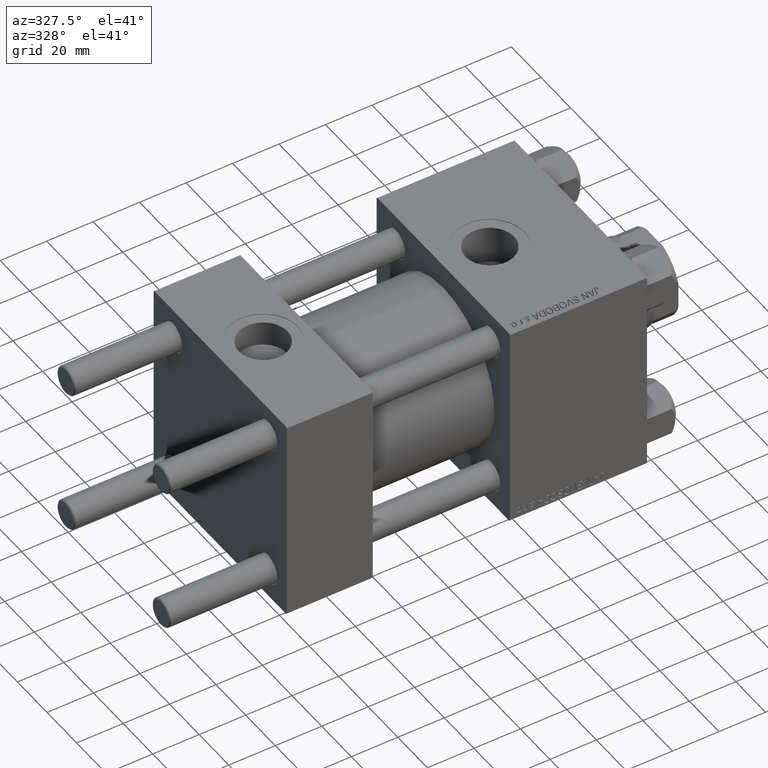
[diagram: clean part render]
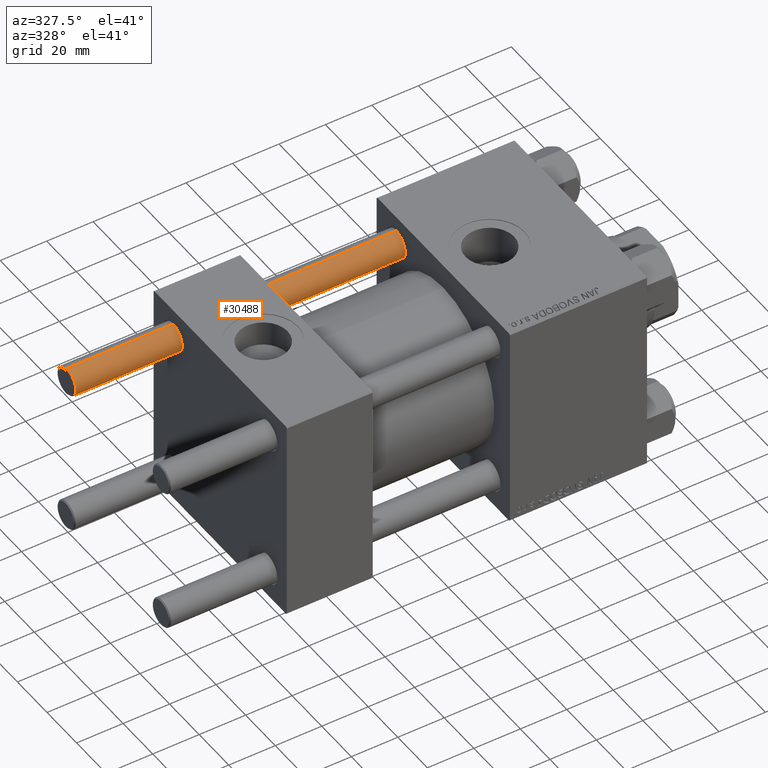
[diagram: same view with one face highlighted and labeled with its STEP entity id]
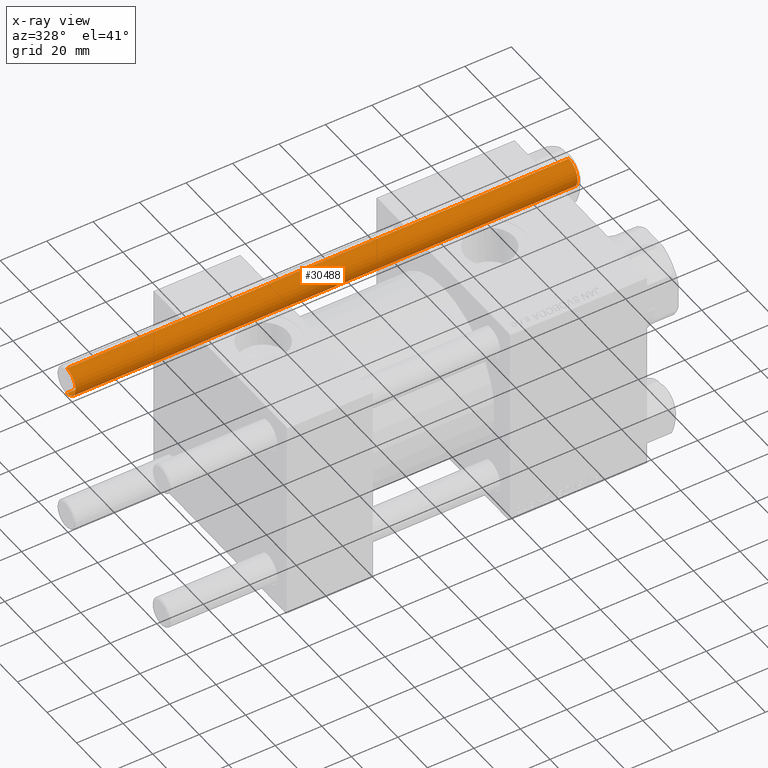
[diagram: x-ray of the same camera — body ghosted, the highlighted face saturated]
A machine part, auxiliary view. The second image highlights one B-rep face of the part: STEP entity #30488.
The next image is the same camera in x-ray: the body ghosted, the highlighted face saturated — about 0% of this face is hidden behind the body in this view.
In plain terms, the highlighted cylindrical surface (edge-blend (fillet) strip) has radius 6 mm, axis along (-1, -0, -0).
Its self-contained STEP definition (entity closure, byte-faithful):
#1919 = ORIENTED_EDGE ( 'NONE', *, *, #45602, .T. ) ;
#2464 = DIRECTION ( 'NONE',  ( -0.000000000000000000, -0.000000000000000000, 1.000000000000000000 ) ) ;
#2714 = CARTESIAN_POINT ( 'NONE',  ( -6.000000000000000888, 0.000000000000000000, 0.4999999999999449329 ) ) ;
#3381 = CIRCLE ( 'NONE', #31488, 6.000000000000000888 ) ;
#3660 = ORIENTED_EDGE ( 'NONE', *, *, #43885, .T. ) ;
#10644 = DIRECTION ( 'NONE',  ( -1.000000000000000000, 0.000000000000000000, 0.000000000000000000 ) ) ;
#12758 = DIRECTION ( 'NONE',  ( -0.000000000000000000, -0.000000000000000000, -1.000000000000000000 ) ) ;
#14034 = DIRECTION ( 'NONE',  ( 1.000000000000000000, 0.000000000000000000, 0.000000000000000000 ) ) ;
#15034 = DIRECTION ( 'NONE',  ( -0.000000000000000000, -0.000000000000000000, -1.000000000000000000 ) ) ;
#17020 = CARTESIAN_POINT ( 'NONE',  ( -6.000000000000000888, 0.000000000000000000, 217.0000000000000000 ) ) ;
#18094 = ORIENTED_EDGE ( 'NONE', *, *, #42589, .F. ) ;
#18311 = CARTESIAN_POINT ( 'NONE',  ( 6.000000000000000888, 7.347880794884120722E-16, 217.0000000000000000 ) ) ;
#18837 = EDGE_CURVE ( 'NONE', #41429, #45914, #45048, .T. ) ;
#19251 = CARTESIAN_POINT ( 'NONE',  ( -6.000000000000000888, 0.000000000000000000, 216.4999999999999716 ) ) ;
#22309 = AXIS2_PLACEMENT_3D ( 'NONE', #33528, #29749, #10644 ) ;
#24275 = CARTESIAN_POINT ( 'NONE',  ( 0.000000000000000000, 0.000000000000000000, 216.4999999999999716 ) ) ;
#29749 = DIRECTION ( 'NONE',  ( -0.000000000000000000, -0.000000000000000000, -1.000000000000000000 ) ) ;
#30488 = ADVANCED_FACE ( 'NONE', ( #41588 ), #33277, .T. ) ;
#30657 = VECTOR ( 'NONE', #12758, 1000.000000000000000 ) ;
#31488 = AXIS2_PLACEMENT_3D ( 'NONE', #36943, #2464, #14034 ) ;
#33277 = CYLINDRICAL_SURFACE ( 'NONE', #22309, 6.000000000000000888 ) ;
#33528 = CARTESIAN_POINT ( 'NONE',  ( 0.000000000000000000, 0.000000000000000000, 217.0000000000000000 ) ) ;
#33937 = VECTOR ( 'NONE', #15034, 1000.000000000000000 ) ;
#36943 = CARTESIAN_POINT ( 'NONE',  ( 0.000000000000000000, 0.000000000000000000, 0.4999999999999449329 ) ) ;
#40196 = AXIS2_PLACEMENT_3D ( 'NONE', #24275, #46935, #47917 ) ;
#40771 = CARTESIAN_POINT ( 'NONE',  ( 6.000000000000000888, 7.347880794884120722E-16, 216.4999999999999716 ) ) ;
#41429 = VERTEX_POINT ( 'NONE', #40771 ) ;
#41462 = LINE ( 'NONE', #18311, #33937 ) ;
#41588 = FACE_OUTER_BOUND ( 'NONE', #42829, .T. ) ;
#42589 = EDGE_CURVE ( 'NONE', #41429, #45285, #41462, .T. ) ;
#42829 = EDGE_LOOP ( 'NONE', ( #18094, #47895, #3660, #1919 ) ) ;
#43885 = EDGE_CURVE ( 'NONE', #45914, #45530, #48225, .T. ) ;
#45048 = CIRCLE ( 'NONE', #40196, 6.000000000000000888 ) ;
#45285 = VERTEX_POINT ( 'NONE', #46382 ) ;
#45530 = VERTEX_POINT ( 'NONE', #2714 ) ;
#45602 = EDGE_CURVE ( 'NONE', #45530, #45285, #3381, .T. ) ;
#45914 = VERTEX_POINT ( 'NONE', #19251 ) ;
#46382 = CARTESIAN_POINT ( 'NONE',  ( 6.000000000000000888, 7.347880794884120722E-16, 0.4999999999999449329 ) ) ;
#46935 = DIRECTION ( 'NONE',  ( 0.000000000000000000, 0.000000000000000000, -1.000000000000000000 ) ) ;
#47895 = ORIENTED_EDGE ( 'NONE', *, *, #18837, .T. ) ;
#47917 = DIRECTION ( 'NONE',  ( 1.000000000000000000, 0.000000000000000000, 0.000000000000000000 ) ) ;
#48225 = LINE ( 'NONE', #17020, #30657 ) ;